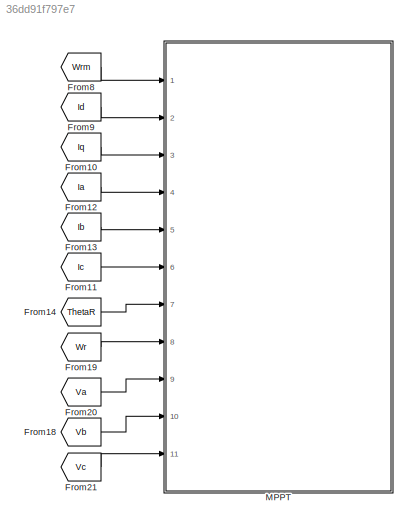
MODEL slx_36dd91f797e7
KIND model
CONFIG AbsTol = auto
CONFIG EnableMultiTasking = off
CONFIG FixedStep = auto
CONFIG MaxStep = auto
CONFIG MinStep = auto
CONFIG RelTol = 1e-3
CONFIG SampleTimeConstraint = Unconstrained
CONFIG Solver = VariableStepAuto
CONFIG SolverName = VariableStepAuto
CONFIG StartTime = 0.0
CONFIG StopTime = 10.0
BLOCK [From] From10
  GotoTag = Iq
BLOCK [From] From11
  GotoTag = Ic
BLOCK [From] From12
  GotoTag = Ia
BLOCK [From] From13
  GotoTag = Ib
BLOCK [From] From14
  GotoTag = ThetaR
BLOCK [From] From18
  GotoTag = Vb
BLOCK [From] From19
  GotoTag = Wr
BLOCK [From] From20
  GotoTag = Va
BLOCK [From] From21
  GotoTag = Vc
BLOCK [From] From8
  GotoTag = Wrm
BLOCK [From] From9
  GotoTag = Id
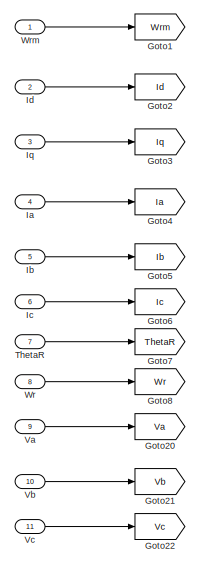
[diagram: MPPT  - part 1/3, top left region]
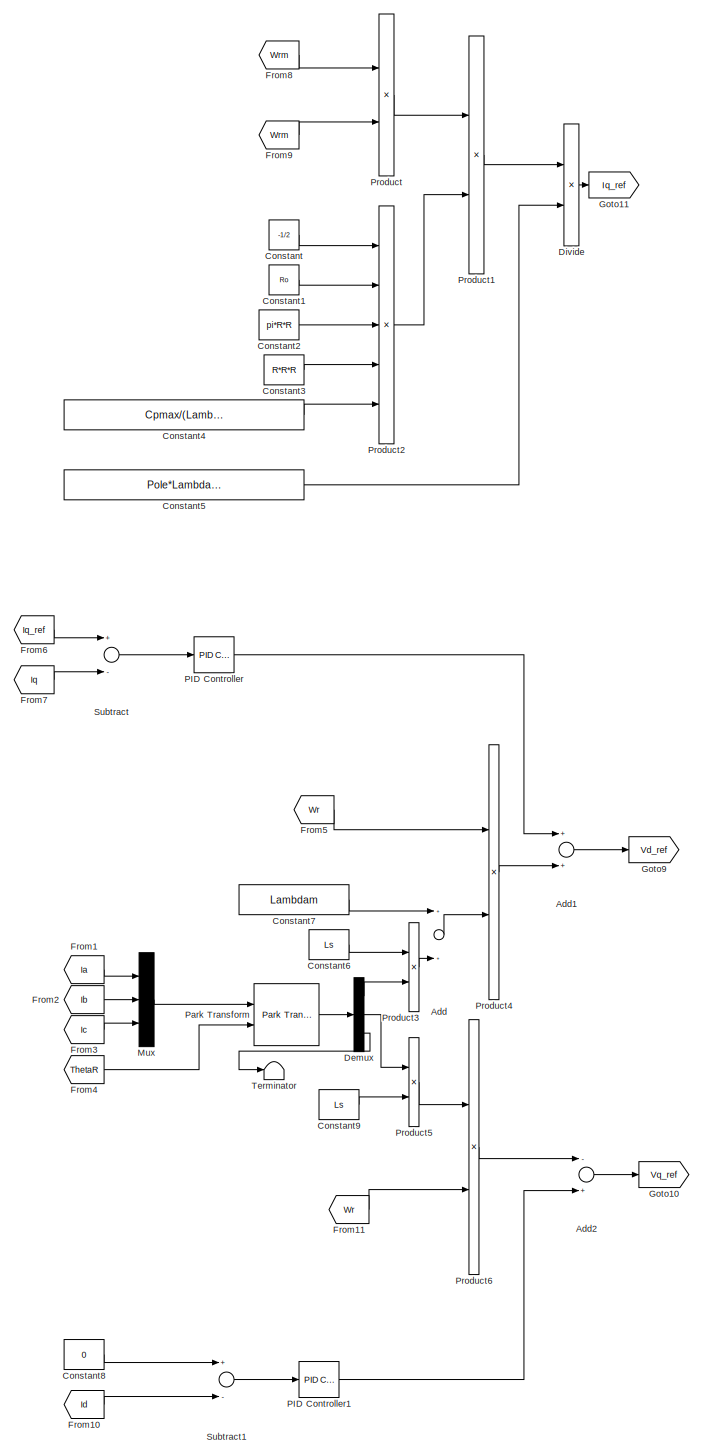
[diagram: MPPT  - part 2/3, left side, full height]
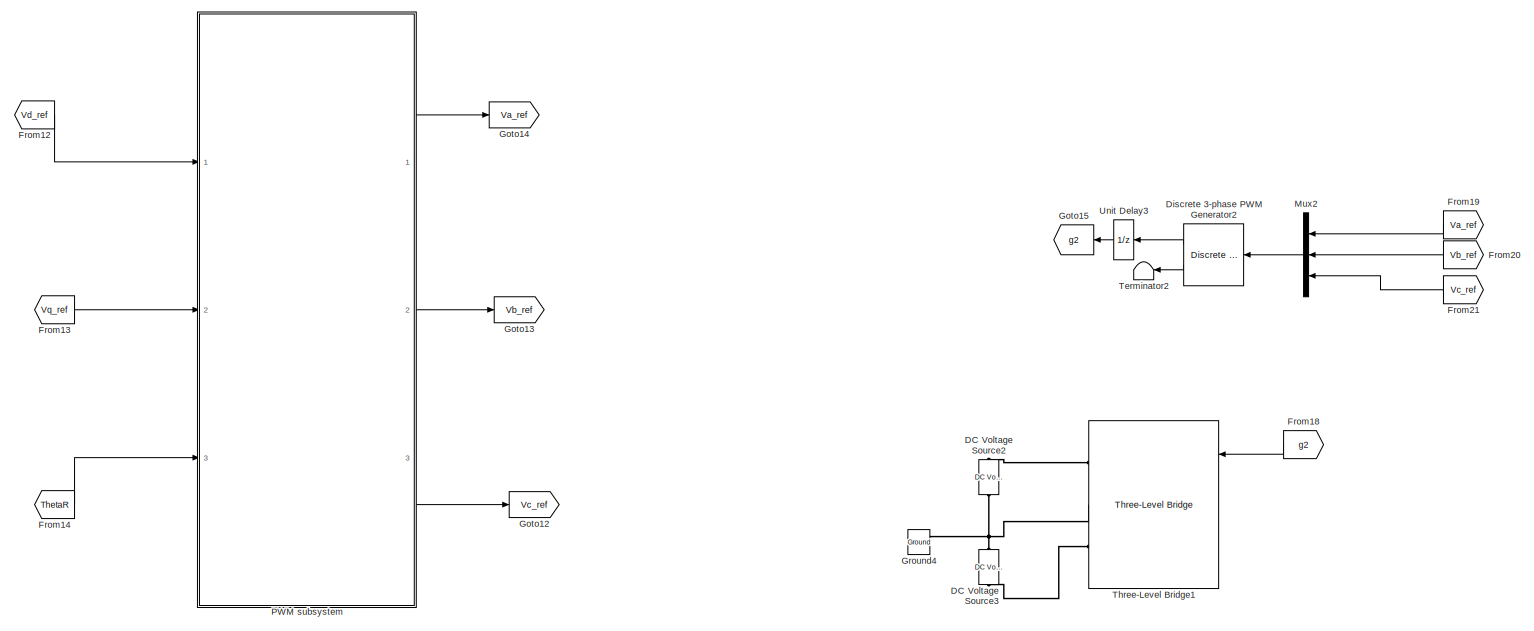
[diagram: MPPT  - part 3/3, middle right region]
BLOCK [SubSystem] MPPT 
  Ports = [11]
  RequestExecContextInheritance = off
BLOCK [Sum] MPPT /Add
  InputSameDT = off
  OutDataTypeStr = Inherit: Inherit via internal rule
  Ports = [2, 1]
  SaturateOnIntegerOverflow = off
BLOCK [Sum] MPPT /Add1
  InputSameDT = off
  OutDataTypeStr = Inherit: Inherit via internal rule
  Ports = [2, 1]
  SaturateOnIntegerOverflow = off
BLOCK [Sum] MPPT /Add2
  InputSameDT = off
  Inputs = -+
  OutDataTypeStr = Inherit: Inherit via internal rule
  Ports = [2, 1]
  SaturateOnIntegerOverflow = off
BLOCK [Constant] MPPT /Constant
  Value = -1/2
BLOCK [Constant] MPPT /Constant1
  Value = Ro
BLOCK [Constant] MPPT /Constant2
  Value = pi*R*R
BLOCK [Constant] MPPT /Constant3
  Value = R*R*R
BLOCK [Constant] MPPT /Constant4
  Value = Cpmax/(Lambda_opt*Lambda_opt*Lambda_opt)
BLOCK [Constant] MPPT /Constant5
  Value = Pole*Lambdam*1.5
BLOCK [Constant] MPPT /Constant6
  Value = Ls
BLOCK [Constant] MPPT /Constant7
  Value = Lambdam
BLOCK [Constant] MPPT /Constant8
  Value = 0
BLOCK [Constant] MPPT /Constant9
  Value = Ls
BLOCK [Reference] MPPT /DC Voltage Source2  REF=powerlib/Electrical
Sources/DC Voltage Source
  Ports = [0, 0, 0, 0, 0, 1, 1]
  SourceBlock = powerlib/Electrical\nSources/DC Voltage Source
  SourceProductBaseCode = PS
  SourceProductName = Simscape Power Systems
  SourceType = DC Voltage Source
BLOCK [Reference] MPPT /DC Voltage Source3  REF=powerlib/Electrical
Sources/DC Voltage Source
  Ports = [0, 0, 0, 0, 0, 1, 1]
  SourceBlock = powerlib/Electrical\nSources/DC Voltage Source
  SourceProductBaseCode = PS
  SourceProductName = Simscape Power Systems
  SourceType = DC Voltage Source
BLOCK [Demux] MPPT /Demux
  DisplayOption = bar
  Outputs = 3
  Ports = [1, 3]
BLOCK [Reference] MPPT /Discrete 3-phase PWM Generator2  REF=powerlib_extras/Discrete 
Control Blocks/Discrete 3-phase
PWM Generator
  Ports = [1, 2]
  SourceBlock = powerlib_extras/Discrete \nControl Blocks/Discrete 3-phase\nPWM Generator
  SourceType = Discrete 3-phase PWM Generator (2- or 3-level)
BLOCK [Product] MPPT /Divide
  InputSameDT = off
  Inputs = */
  OutDataTypeStr = Inherit: Inherit via internal rule
  Ports = [2, 1]
  RndMeth = Floor
  SaturateOnIntegerOverflow = off
BLOCK [From] MPPT /From1
  GotoTag = Ia
BLOCK [From] MPPT /From10
  GotoTag = Id
BLOCK [From] MPPT /From11
  GotoTag = Wr
BLOCK [From] MPPT /From12
  GotoTag = Vd_ref
BLOCK [From] MPPT /From13
  GotoTag = Vq_ref
BLOCK [From] MPPT /From14
  GotoTag = ThetaR
BLOCK [From] MPPT /From18
  GotoTag = g2
  TagVisibility = global
BLOCK [From] MPPT /From19
  GotoTag = Va_ref
BLOCK [From] MPPT /From2
  GotoTag = Ib
BLOCK [From] MPPT /From20
  GotoTag = Vb_ref
BLOCK [From] MPPT /From21
  GotoTag = Vc_ref
BLOCK [From] MPPT /From3
  GotoTag = Ic
BLOCK [From] MPPT /From4
  GotoTag = ThetaR
BLOCK [From] MPPT /From5
  GotoTag = Wr
BLOCK [From] MPPT /From6
  GotoTag = Iq_ref
BLOCK [From] MPPT /From7
  GotoTag = Iq
BLOCK [From] MPPT /From8
  GotoTag = Wrm
BLOCK [From] MPPT /From9
  GotoTag = Wrm
BLOCK [Goto] MPPT /Goto1
  GotoTag = Wrm
BLOCK [Goto] MPPT /Goto10
  GotoTag = Vq_ref
BLOCK [Goto] MPPT /Goto11
  GotoTag = Iq_ref
BLOCK [Goto] MPPT /Goto12
  GotoTag = Vc_ref
BLOCK [Goto] MPPT /Goto13
  GotoTag = Vb_ref
BLOCK [Goto] MPPT /Goto14
  GotoTag = Va_ref
BLOCK [Goto] MPPT /Goto15
  GotoTag = g2
  TagVisibility = global
BLOCK [Goto] MPPT /Goto2
  GotoTag = Id
BLOCK [Goto] MPPT /Goto20
  GotoTag = Va
BLOCK [Goto] MPPT /Goto21
  GotoTag = Vb
BLOCK [Goto] MPPT /Goto22
  GotoTag = Vc
BLOCK [Goto] MPPT /Goto3
  GotoTag = Iq
BLOCK [Goto] MPPT /Goto4
  GotoTag = Ia
BLOCK [Goto] MPPT /Goto5
  GotoTag = Ib
BLOCK [Goto] MPPT /Goto6
  GotoTag = Ic
BLOCK [Goto] MPPT /Goto7
  GotoTag = ThetaR
BLOCK [Goto] MPPT /Goto8
  GotoTag = Wr
BLOCK [Goto] MPPT /Goto9
  GotoTag = Vd_ref
BLOCK [Reference] MPPT /Ground4  REF=powerlib/Elements/Ground
  Ports = [0, 0, 0, 0, 0, 1]
  SourceBlock = powerlib/Elements/Ground
  SourceProductBaseCode = PS
  SourceProductName = Simscape Power Systems
  SourceType = Ground
BLOCK [Inport] MPPT /Ia 
  IconDisplay = Port number
  Port = 4
BLOCK [Inport] MPPT /Ib 
  IconDisplay = Port number
  Port = 5
BLOCK [Inport] MPPT /Ic 
  IconDisplay = Port number
  Port = 6
BLOCK [Inport] MPPT /Id 
  IconDisplay = Port number
  Port = 2
BLOCK [Inport] MPPT /Iq 
  IconDisplay = Port number
  Port = 3
BLOCK [Mux] MPPT /Mux
  DisplayOption = bar
  Inputs = 3
  Ports = [3, 1]
BLOCK [Mux] MPPT /Mux2
  DisplayOption = bar
  Inputs = 3
  Ports = [3, 1]
BLOCK [Reference] MPPT /PID Controller  REF=simulink/Continuous/PID Controller
  Ports = [1, 1]
  SourceBlock = simulink/Continuous/PID Controller
  SourceProductBaseCode = SL
  SourceProductName = Simulink
  SourceType = PID 1dof
BLOCK [Reference] MPPT /PID Controller1  REF=simulink/Continuous/PID Controller
  Ports = [1, 1]
  SourceBlock = simulink/Continuous/PID Controller
  SourceProductBaseCode = SL
  SourceProductName = Simulink
  SourceType = PID 1dof
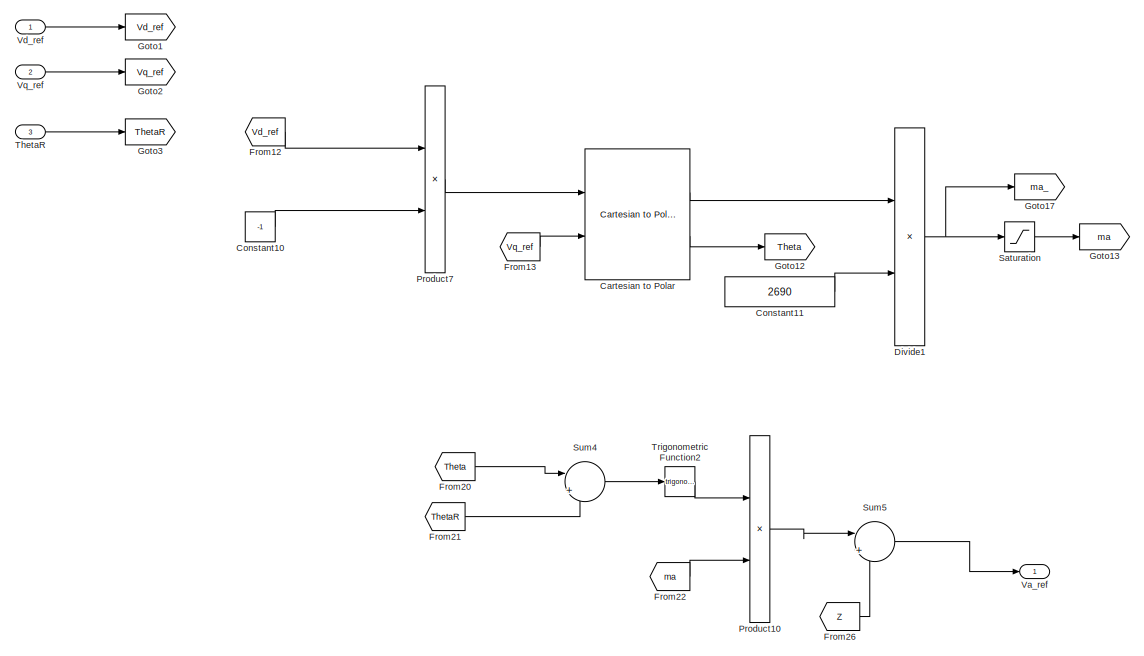
[diagram: MPPT /PWM subsystem  - part 1/3, top left region]
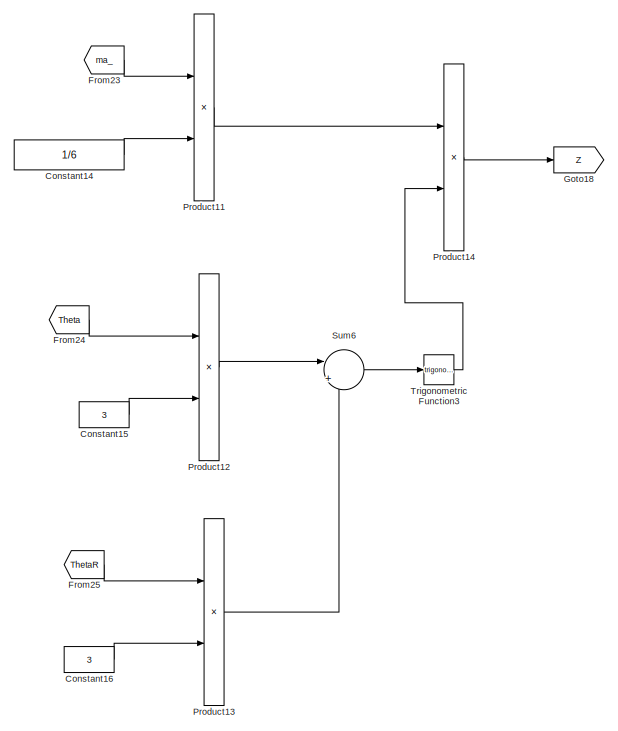
[diagram: MPPT /PWM subsystem  - part 2/3, middle right region]
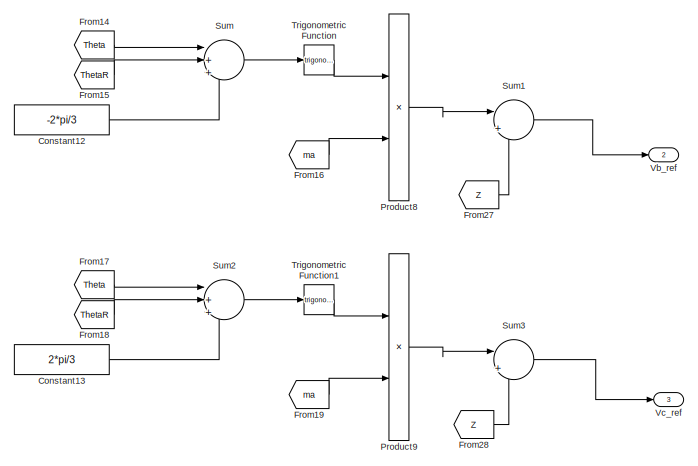
[diagram: MPPT /PWM subsystem  - part 3/3, bottom center region]
BLOCK [SubSystem] MPPT /PWM subsystem 
  Ports = [3, 3]
  RequestExecContextInheritance = off
BLOCK [Reference] MPPT /PWM subsystem /Cartesian to Polar  REF=simulink_extras/Transformations/Cartesian to
Polar
  Ports = [2, 2]
  SourceBlock = simulink_extras/Transformations/Cartesian to\nPolar
  SourceProductBaseCode = SL
  SourceProductName = Simulink
  SourceType = Cart2Polar
BLOCK [Constant] MPPT /PWM subsystem /Constant10
  Value = -1
BLOCK [Constant] MPPT /PWM subsystem /Constant11
  Value = 2690
BLOCK [Constant] MPPT /PWM subsystem /Constant12
  Value = -2*pi/3
BLOCK [Constant] MPPT /PWM subsystem /Constant13
  Value = 2*pi/3
BLOCK [Constant] MPPT /PWM subsystem /Constant14
  Value = 1/6
BLOCK [Constant] MPPT /PWM subsystem /Constant15
  Value = 3
BLOCK [Constant] MPPT /PWM subsystem /Constant16
  Value = 3
BLOCK [Product] MPPT /PWM subsystem /Divide1
  InputSameDT = off
  Inputs = */
  OutDataTypeStr = Inherit: Inherit via internal rule
  Ports = [2, 1]
  RndMeth = Floor
  SaturateOnIntegerOverflow = off
BLOCK [From] MPPT /PWM subsystem /From12
  GotoTag = Vd_ref
BLOCK [From] MPPT /PWM subsystem /From13
  GotoTag = Vq_ref
BLOCK [From] MPPT /PWM subsystem /From14
  GotoTag = Theta
BLOCK [From] MPPT /PWM subsystem /From15
  GotoTag = ThetaR
BLOCK [From] MPPT /PWM subsystem /From16
  GotoTag = ma
BLOCK [From] MPPT /PWM subsystem /From17
  GotoTag = Theta
BLOCK [From] MPPT /PWM subsystem /From18
  GotoTag = ThetaR
BLOCK [From] MPPT /PWM subsystem /From19
  GotoTag = ma
BLOCK [From] MPPT /PWM subsystem /From20
  GotoTag = Theta
BLOCK [From] MPPT /PWM subsystem /From21
  GotoTag = ThetaR
BLOCK [From] MPPT /PWM subsystem /From22
  GotoTag = ma
BLOCK [From] MPPT /PWM subsystem /From23
  GotoTag = ma_
BLOCK [From] MPPT /PWM subsystem /From24
  GotoTag = Theta
BLOCK [From] MPPT /PWM subsystem /From25
  GotoTag = ThetaR
BLOCK [From] MPPT /PWM subsystem /From26
  GotoTag = Z
BLOCK [From] MPPT /PWM subsystem /From27
  GotoTag = Z
BLOCK [From] MPPT /PWM subsystem /From28
  GotoTag = Z
BLOCK [Goto] MPPT /PWM subsystem /Goto1
  GotoTag = Vd_ref
BLOCK [Goto] MPPT /PWM subsystem /Goto12
  GotoTag = Theta
BLOCK [Goto] MPPT /PWM subsystem /Goto13
  GotoTag = ma
BLOCK [Goto] MPPT /PWM subsystem /Goto17
  GotoTag = ma_
BLOCK [Goto] MPPT /PWM subsystem /Goto18
  GotoTag = Z
BLOCK [Goto] MPPT /PWM subsystem /Goto2
  GotoTag = Vq_ref
BLOCK [Goto] MPPT /PWM subsystem /Goto3
  GotoTag = ThetaR
BLOCK [Product] MPPT /PWM subsystem /Product10
  InputSameDT = off
  OutDataTypeStr = Inherit: Inherit via internal rule
  Ports = [2, 1]
  RndMeth = Floor
  SaturateOnIntegerOverflow = off
BLOCK [Product] MPPT /PWM subsystem /Product11
  InputSameDT = off
  OutDataTypeStr = Inherit: Inherit via internal rule
  Ports = [2, 1]
  RndMeth = Floor
  SaturateOnIntegerOverflow = off
BLOCK [Product] MPPT /PWM subsystem /Product12
  InputSameDT = off
  OutDataTypeStr = Inherit: Inherit via internal rule
  Ports = [2, 1]
  RndMeth = Floor
  SaturateOnIntegerOverflow = off
BLOCK [Product] MPPT /PWM subsystem /Product13
  InputSameDT = off
  OutDataTypeStr = Inherit: Inherit via internal rule
  Ports = [2, 1]
  RndMeth = Floor
  SaturateOnIntegerOverflow = off
BLOCK [Product] MPPT /PWM subsystem /Product14
  InputSameDT = off
  OutDataTypeStr = Inherit: Inherit via internal rule
  Ports = [2, 1]
  RndMeth = Floor
  SaturateOnIntegerOverflow = off
BLOCK [Product] MPPT /PWM subsystem /Product7
  InputSameDT = off
  OutDataTypeStr = Inherit: Inherit via internal rule
  Ports = [2, 1]
  RndMeth = Floor
  SaturateOnIntegerOverflow = off
BLOCK [Product] MPPT /PWM subsystem /Product8
  InputSameDT = off
  OutDataTypeStr = Inherit: Inherit via internal rule
  Ports = [2, 1]
  RndMeth = Floor
  SaturateOnIntegerOverflow = off
BLOCK [Product] MPPT /PWM subsystem /Product9
  InputSameDT = off
  OutDataTypeStr = Inherit: Inherit via internal rule
  Ports = [2, 1]
  RndMeth = Floor
  SaturateOnIntegerOverflow = off
BLOCK [Saturate] MPPT /PWM subsystem /Saturation
  InputPortMap = u0
  LowerLimit = 0
  Ports = [1, 1]
  UpperLimit = 1
BLOCK [Sum] MPPT /PWM subsystem /Sum
  IconShape = round
  InputSameDT = off
  Inputs = |+++
  OutDataTypeStr = Inherit: Inherit via internal rule
  Ports = [3, 1]
  SaturateOnIntegerOverflow = off
BLOCK [Sum] MPPT /PWM subsystem /Sum1
  IconShape = round
  InputSameDT = off
  Inputs = |++
  OutDataTypeStr = Inherit: Inherit via internal rule
  Ports = [2, 1]
  SaturateOnIntegerOverflow = off
BLOCK [Sum] MPPT /PWM subsystem /Sum2
  IconShape = round
  InputSameDT = off
  Inputs = |+++
  OutDataTypeStr = Inherit: Inherit via internal rule
  Ports = [3, 1]
  SaturateOnIntegerOverflow = off
BLOCK [Sum] MPPT /PWM subsystem /Sum3
  IconShape = round
  InputSameDT = off
  Inputs = |++
  OutDataTypeStr = Inherit: Inherit via internal rule
  Ports = [2, 1]
  SaturateOnIntegerOverflow = off
BLOCK [Sum] MPPT /PWM subsystem /Sum4
  IconShape = round
  InputSameDT = off
  Inputs = |++
  OutDataTypeStr = Inherit: Inherit via internal rule
  Ports = [2, 1]
  SaturateOnIntegerOverflow = off
BLOCK [Sum] MPPT /PWM subsystem /Sum5
  IconShape = round
  InputSameDT = off
  Inputs = |++
  OutDataTypeStr = Inherit: Inherit via internal rule
  Ports = [2, 1]
  SaturateOnIntegerOverflow = off
BLOCK [Sum] MPPT /PWM subsystem /Sum6
  IconShape = round
  InputSameDT = off
  Inputs = |++
  OutDataTypeStr = Inherit: Inherit via internal rule
  Ports = [2, 1]
  SaturateOnIntegerOverflow = off
BLOCK [Inport] MPPT /PWM subsystem /ThetaR 
  IconDisplay = Port number
  Port = 3
BLOCK [Trigonometry] MPPT /PWM subsystem /Trigonometric Function
  Ports = [1, 1]
BLOCK [Trigonometry] MPPT /PWM subsystem /Trigonometric Function1
  Ports = [1, 1]
BLOCK [Trigonometry] MPPT /PWM subsystem /Trigonometric Function2
  Ports = [1, 1]
BLOCK [Trigonometry] MPPT /PWM subsystem /Trigonometric Function3
  Ports = [1, 1]
BLOCK [Outport] MPPT /PWM subsystem /Va_ref 
  IconDisplay = Port number
BLOCK [Outport] MPPT /PWM subsystem /Vb_ref 
  IconDisplay = Port number
  Port = 2
BLOCK [Outport] MPPT /PWM subsystem /Vc_ref 
  IconDisplay = Port number
  Port = 3
BLOCK [Inport] MPPT /PWM subsystem /Vd_ref 
  IconDisplay = Port number
BLOCK [Inport] MPPT /PWM subsystem /Vq_ref 
  IconDisplay = Port number
  Port = 2
BLOCK [Reference] MPPT /Park Transform  REF=peTransforms/Park Transform
  Ports = [2, 1]
  SourceBlock = peTransforms/Park Transform
  SourceType = Park Transform
BLOCK [Product] MPPT /Product
  InputSameDT = off
  OutDataTypeStr = Inherit: Inherit via internal rule
  Ports = [2, 1]
  RndMeth = Floor
  SaturateOnIntegerOverflow = off
BLOCK [Product] MPPT /Product1
  InputSameDT = off
  OutDataTypeStr = Inherit: Inherit via internal rule
  Ports = [2, 1]
  RndMeth = Floor
  SaturateOnIntegerOverflow = off
BLOCK [Product] MPPT /Product2
  InputSameDT = off
  Inputs = 5
  OutDataTypeStr = Inherit: Inherit via internal rule
  Ports = [5, 1]
  RndMeth = Floor
  SaturateOnIntegerOverflow = off
BLOCK [Product] MPPT /Product3
  InputSameDT = off
  OutDataTypeStr = Inherit: Inherit via internal rule
  Ports = [2, 1]
  RndMeth = Floor
  SaturateOnIntegerOverflow = off
BLOCK [Product] MPPT /Product4
  InputSameDT = off
  OutDataTypeStr = Inherit: Inherit via internal rule
  Ports = [2, 1]
  RndMeth = Floor
  SaturateOnIntegerOverflow = off
BLOCK [Product] MPPT /Product5
  InputSameDT = off
  OutDataTypeStr = Inherit: Inherit via internal rule
  Ports = [2, 1]
  RndMeth = Floor
  SaturateOnIntegerOverflow = off
BLOCK [Product] MPPT /Product6
  InputSameDT = off
  OutDataTypeStr = Inherit: Inherit via internal rule
  Ports = [2, 1]
  RndMeth = Floor
  SaturateOnIntegerOverflow = off
BLOCK [Sum] MPPT /Subtract
  InputSameDT = off
  Inputs = +-
  OutDataTypeStr = Inherit: Inherit via internal rule
  Ports = [2, 1]
  SaturateOnIntegerOverflow = off
BLOCK [Sum] MPPT /Subtract1
  InputSameDT = off
  Inputs = +-
  OutDataTypeStr = Inherit: Inherit via internal rule
  Ports = [2, 1]
  SaturateOnIntegerOverflow = off
BLOCK [Terminator] MPPT /Terminator
BLOCK [Terminator] MPPT /Terminator2
BLOCK [Inport] MPPT /ThetaR 
  IconDisplay = Port number
  Port = 7
BLOCK [Reference] MPPT /Three-Level Bridge1  REF=powerlib/Power
Electronics/Three-Level Bridge
  AttributesFormatString = \n
  Ports = [1, 0, 0, 0, 0, 3, 3]
  SourceBlock = powerlib/Power\nElectronics/Three-Level Bridge
  SourceProductBaseCode = PS
  SourceProductName = Simscape Power Systems
  SourceType = Three-Level Bridge
BLOCK [UnitDelay] MPPT /Unit Delay3
  SampleTime = Ts
BLOCK [Inport] MPPT /Va
  IconDisplay = Port number
  Port = 9
BLOCK [Inport] MPPT /Vb
  IconDisplay = Port number
  Port = 10
BLOCK [Inport] MPPT /Vc 
  IconDisplay = Port number
  Port = 11
BLOCK [Inport] MPPT /Wr 
  IconDisplay = Port number
  Port = 8
BLOCK [Inport] MPPT /Wrm
  IconDisplay = Port number
LINE From10:1 -> MPPT :3
LINE From11:1 -> MPPT :6
LINE From12:1 -> MPPT :4
LINE From13:1 -> MPPT :5
LINE From14:1 -> MPPT :7
LINE From18:1 -> MPPT :10
LINE From19:1 -> MPPT :8
LINE From20:1 -> MPPT :9
LINE From21:1 -> MPPT :11
LINE From8:1 -> MPPT :1
LINE From9:1 -> MPPT :2
LINE MPPT /Add1:1 -> MPPT /Goto9:1
LINE MPPT /Add2:1 -> MPPT /Goto10:1
LINE MPPT /Add:1 -> MPPT /Product4:2
LINE MPPT /Constant1:1 -> MPPT /Product2:2
LINE MPPT /Constant2:1 -> MPPT /Product2:3
LINE MPPT /Constant3:1 -> MPPT /Product2:4
LINE MPPT /Constant4:1 -> MPPT /Product2:5
LINE MPPT /Constant5:1 -> MPPT /Divide:2
LINE MPPT /Constant6:1 -> MPPT /Product3:1
LINE MPPT /Constant7:1 -> MPPT /Add:1
LINE MPPT /Constant8:1 -> MPPT /Subtract1:1
LINE MPPT /Constant9:1 -> MPPT /Product5:2
LINE MPPT /Constant:1 -> MPPT /Product2:1
LINE MPPT /Demux:1 -> MPPT /Product3:2
LINE MPPT /Demux:2 -> MPPT /Product5:1
LINE MPPT /Demux:3 -> MPPT /Terminator:1
LINE MPPT /Discrete 3-phase PWM Generator2:1 -> MPPT /Unit Delay3:1
LINE MPPT /Discrete 3-phase PWM Generator2:2 -> MPPT /Terminator2:1
LINE MPPT /Divide:1 -> MPPT /Goto11:1
LINE MPPT /From10:1 -> MPPT /Subtract1:2
LINE MPPT /From11:1 -> MPPT /Product6:2
LINE MPPT /From12:1 -> MPPT /PWM subsystem :1
LINE MPPT /From13:1 -> MPPT /PWM subsystem :2
LINE MPPT /From14:1 -> MPPT /PWM subsystem :3
LINE MPPT /From18:1 -> MPPT /Three-Level Bridge1:1
LINE MPPT /From19:1 -> MPPT /Mux2:1
LINE MPPT /From1:1 -> MPPT /Mux:1
LINE MPPT /From20:1 -> MPPT /Mux2:2
LINE MPPT /From21:1 -> MPPT /Mux2:3
LINE MPPT /From2:1 -> MPPT /Mux:2
LINE MPPT /From3:1 -> MPPT /Mux:3
LINE MPPT /From4:1 -> MPPT /Park Transform:2
LINE MPPT /From5:1 -> MPPT /Product4:1
LINE MPPT /From6:1 -> MPPT /Subtract:1
LINE MPPT /From7:1 -> MPPT /Subtract:2
LINE MPPT /From8:1 -> MPPT /Product:1
LINE MPPT /From9:1 -> MPPT /Product:2
LINE MPPT /Ia :1 -> MPPT /Goto4:1
LINE MPPT /Ib :1 -> MPPT /Goto5:1
LINE MPPT /Ic :1 -> MPPT /Goto6:1
LINE MPPT /Id :1 -> MPPT /Goto2:1
LINE MPPT /Iq :1 -> MPPT /Goto3:1
LINE MPPT /Mux2:1 -> MPPT /Discrete 3-phase PWM Generator2:1
LINE MPPT /Mux:1 -> MPPT /Park Transform:1
LINE MPPT /PID Controller1:1 -> MPPT /Add2:2
LINE MPPT /PID Controller:1 -> MPPT /Add1:1
LINE MPPT /PWM subsystem /Cartesian to Polar:1 -> MPPT /PWM subsystem /Divide1:1
LINE MPPT /PWM subsystem /Cartesian to Polar:2 -> MPPT /PWM subsystem /Goto12:1
LINE MPPT /PWM subsystem /Constant10:1 -> MPPT /PWM subsystem /Product7:2
LINE MPPT /PWM subsystem /Constant11:1 -> MPPT /PWM subsystem /Divide1:2
LINE MPPT /PWM subsystem /Constant12:1 -> MPPT /PWM subsystem /Sum:3
LINE MPPT /PWM subsystem /Constant13:1 -> MPPT /PWM subsystem /Sum2:3
LINE MPPT /PWM subsystem /Constant14:1 -> MPPT /PWM subsystem /Product11:2
LINE MPPT /PWM subsystem /Constant15:1 -> MPPT /PWM subsystem /Product12:2
LINE MPPT /PWM subsystem /Constant16:1 -> MPPT /PWM subsystem /Product13:2
NET MPPT /PWM subsystem /Divide1:1 -> MPPT /PWM subsystem /Goto17:1, MPPT /PWM subsystem /Saturation:1
LINE MPPT /PWM subsystem /From12:1 -> MPPT /PWM subsystem /Product7:1
LINE MPPT /PWM subsystem /From13:1 -> MPPT /PWM subsystem /Cartesian to Polar:2
LINE MPPT /PWM subsystem /From14:1 -> MPPT /PWM subsystem /Sum:1
LINE MPPT /PWM subsystem /From15:1 -> MPPT /PWM subsystem /Sum:2
LINE MPPT /PWM subsystem /From16:1 -> MPPT /PWM subsystem /Product8:2
LINE MPPT /PWM subsystem /From17:1 -> MPPT /PWM subsystem /Sum2:1
LINE MPPT /PWM subsystem /From18:1 -> MPPT /PWM subsystem /Sum2:2
LINE MPPT /PWM subsystem /From19:1 -> MPPT /PWM subsystem /Product9:2
LINE MPPT /PWM subsystem /From20:1 -> MPPT /PWM subsystem /Sum4:1
LINE MPPT /PWM subsystem /From21:1 -> MPPT /PWM subsystem /Sum4:2
LINE MPPT /PWM subsystem /From22:1 -> MPPT /PWM subsystem /Product10:2
LINE MPPT /PWM subsystem /From23:1 -> MPPT /PWM subsystem /Product11:1
LINE MPPT /PWM subsystem /From24:1 -> MPPT /PWM subsystem /Product12:1
LINE MPPT /PWM subsystem /From25:1 -> MPPT /PWM subsystem /Product13:1
LINE MPPT /PWM subsystem /From26:1 -> MPPT /PWM subsystem /Sum5:2
LINE MPPT /PWM subsystem /From27:1 -> MPPT /PWM subsystem /Sum1:2
LINE MPPT /PWM subsystem /From28:1 -> MPPT /PWM subsystem /Sum3:2
LINE MPPT /PWM subsystem /Product10:1 -> MPPT /PWM subsystem /Sum5:1
LINE MPPT /PWM subsystem /Product11:1 -> MPPT /PWM subsystem /Product14:1
LINE MPPT /PWM subsystem /Product12:1 -> MPPT /PWM subsystem /Sum6:1
LINE MPPT /PWM subsystem /Product13:1 -> MPPT /PWM subsystem /Sum6:2
LINE MPPT /PWM subsystem /Product14:1 -> MPPT /PWM subsystem /Goto18:1
LINE MPPT /PWM subsystem /Product7:1 -> MPPT /PWM subsystem /Cartesian to Polar:1
LINE MPPT /PWM subsystem /Product8:1 -> MPPT /PWM subsystem /Sum1:1
LINE MPPT /PWM subsystem /Product9:1 -> MPPT /PWM subsystem /Sum3:1
LINE MPPT /PWM subsystem /Saturation:1 -> MPPT /PWM subsystem /Goto13:1
LINE MPPT /PWM subsystem /Sum1:1 -> MPPT /PWM subsystem /Vb_ref :1
LINE MPPT /PWM subsystem /Sum2:1 -> MPPT /PWM subsystem /Trigonometric Function1:1
LINE MPPT /PWM subsystem /Sum3:1 -> MPPT /PWM subsystem /Vc_ref :1
LINE MPPT /PWM subsystem /Sum4:1 -> MPPT /PWM subsystem /Trigonometric Function2:1
LINE MPPT /PWM subsystem /Sum5:1 -> MPPT /PWM subsystem /Va_ref :1
LINE MPPT /PWM subsystem /Sum6:1 -> MPPT /PWM subsystem /Trigonometric Function3:1
LINE MPPT /PWM subsystem /Sum:1 -> MPPT /PWM subsystem /Trigonometric Function:1
LINE MPPT /PWM subsystem /ThetaR :1 -> MPPT /PWM subsystem /Goto3:1
LINE MPPT /PWM subsystem /Trigonometric Function1:1 -> MPPT /PWM subsystem /Product9:1
LINE MPPT /PWM subsystem /Trigonometric Function2:1 -> MPPT /PWM subsystem /Product10:1
LINE MPPT /PWM subsystem /Trigonometric Function3:1 -> MPPT /PWM subsystem /Product14:2
LINE MPPT /PWM subsystem /Trigonometric Function:1 -> MPPT /PWM subsystem /Product8:1
LINE MPPT /PWM subsystem /Vd_ref :1 -> MPPT /PWM subsystem /Goto1:1
LINE MPPT /PWM subsystem /Vq_ref :1 -> MPPT /PWM subsystem /Goto2:1
LINE MPPT /PWM subsystem :1 -> MPPT /Goto14:1
LINE MPPT /PWM subsystem :2 -> MPPT /Goto13:1
LINE MPPT /PWM subsystem :3 -> MPPT /Goto12:1
LINE MPPT /Park Transform:1 -> MPPT /Demux:1
LINE MPPT /Product1:1 -> MPPT /Divide:1
LINE MPPT /Product2:1 -> MPPT /Product1:2
LINE MPPT /Product3:1 -> MPPT /Add:2
LINE MPPT /Product4:1 -> MPPT /Add1:2
LINE MPPT /Product5:1 -> MPPT /Product6:1
LINE MPPT /Product6:1 -> MPPT /Add2:1
LINE MPPT /Product:1 -> MPPT /Product1:1
LINE MPPT /Subtract1:1 -> MPPT /PID Controller1:1
LINE MPPT /Subtract:1 -> MPPT /PID Controller:1
LINE MPPT /ThetaR :1 -> MPPT /Goto7:1
LINE MPPT /Unit Delay3:1 -> MPPT /Goto15:1
LINE MPPT /Va:1 -> MPPT /Goto20:1
LINE MPPT /Vb:1 -> MPPT /Goto21:1
LINE MPPT /Vc :1 -> MPPT /Goto22:1
LINE MPPT /Wr :1 -> MPPT /Goto8:1
LINE MPPT /Wrm:1 -> MPPT /Goto1:1
PNET net1: MPPT /DC Voltage Source2:LConn1 -- MPPT /DC Voltage Source3:RConn1 -- MPPT /Ground4:LConn1 -- MPPT /Three-Level Bridge1:RConn2
PLINE MPPT /DC Voltage Source2:RConn1 -- MPPT /Three-Level Bridge1:RConn1
PLINE MPPT /DC Voltage Source3:LConn1 -- MPPT /Three-Level Bridge1:RConn3
note: NET lines group one-source signal fan-out (src -> all destinations, sorted); 1:1 wires keep LINE; PNET lines group multi-terminal physical nets as a canonical sorted terminal list (undirected conserving connections); 2-terminal nets keep the pairwise PLINE form
